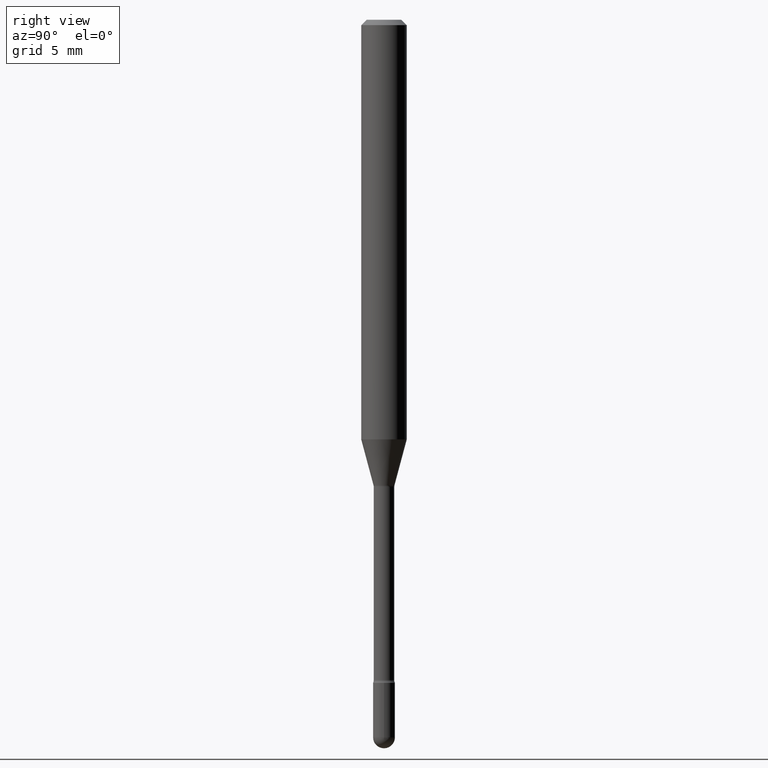
[diagram: clean part render]
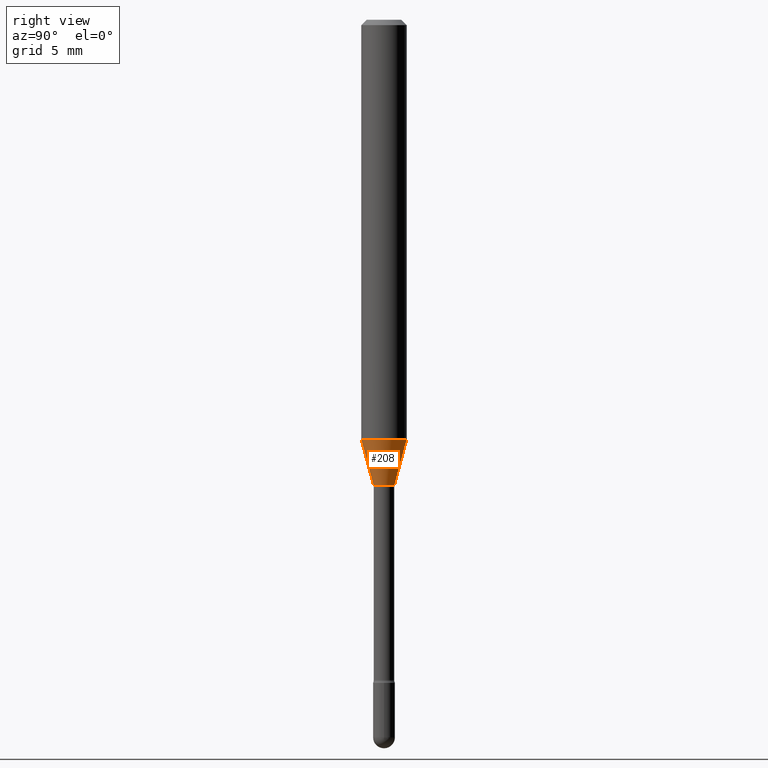
[diagram: same view with one face highlighted and labeled with its STEP entity id]
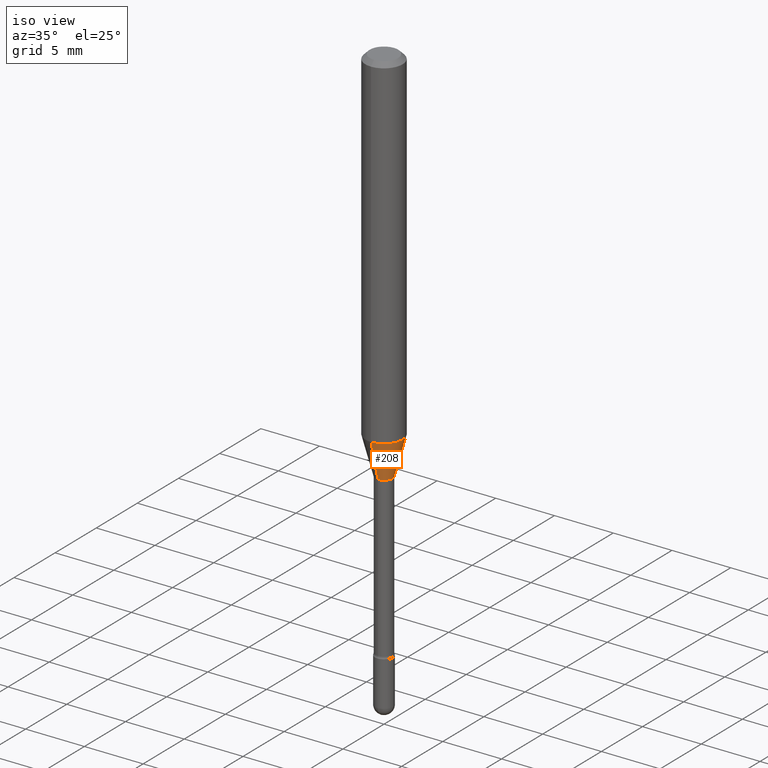
[diagram: same view with one face highlighted and labeled with its STEP entity id]
A machine part, right view. The second image highlights one B-rep face of the part: STEP entity #208.
A second angle (iso view) of the same face is appended — the face is thin or edge-on in the first view.
In plain terms, the highlighted conical surface has half-angle 15 deg.
Its self-contained STEP definition (entity closure, byte-faithful):
#19 = DIRECTION ( 'NONE',  ( -1.807323732225328562E-15, -0.2588190451025179639, 0.9659258262890690894 ) ) ;
#35 = ORIENTED_EDGE ( 'NONE', *, *, #116, .T. ) ;
#42 = AXIS2_PLACEMENT_3D ( 'NONE', #142, #87, #266 ) ;
#53 = EDGE_CURVE ( 'NONE', #333, #104, #298, .T. ) ;
#61 = ORIENTED_EDGE ( 'NONE', *, *, #348, .F. ) ;
#66 = LINE ( 'NONE', #143, #287 ) ;
#80 = ORIENTED_EDGE ( 'NONE', *, *, #53, .T. ) ;
#87 = DIRECTION ( 'NONE',  ( -2.445457254493661418E-29, 3.491497881522819481E-15, 1.000000000000000000 ) ) ;
#104 = VERTEX_POINT ( 'NONE', #129 ) ;
#116 = EDGE_CURVE ( 'NONE', #325, #333, #201, .T. ) ;
#129 = CARTESIAN_POINT ( 'NONE',  ( 4.440892098500904235E-16, 0.06249999999999594075, -1.151990657300388188 ) ) ;
#142 = CARTESIAN_POINT ( 'NONE',  ( 3.125520580409640531E-29, -4.462457262380464341E-15, -1.278092501787273072 ) ) ;
#143 = CARTESIAN_POINT ( 'NONE',  ( -2.004886277601679343E-16, -0.02871111260566843598, -1.278092501787273072 ) ) ;
#180 = CARTESIAN_POINT ( 'NONE',  ( 3.125520580409640531E-29, -4.462457262380464341E-15, -1.278092501787273072 ) ) ;
#185 = CARTESIAN_POINT ( 'NONE',  ( -4.364351673553636648E-16, -0.06250000000000405231, -1.151990657300387522 ) ) ;
#189 = EDGE_LOOP ( 'NONE', ( #35, #80, #279, #61 ) ) ;
#198 = EDGE_CURVE ( 'NONE', #322, #104, #243, .T. ) ;
#201 = CIRCLE ( 'NONE', #326, 0.02871111260566397427 ) ;
#208 = ADVANCED_FACE ( 'NONE', ( #228 ), #233, .T. ) ;
#217 = DIRECTION ( 'NONE',  ( -6.982962677686265922E-15, -1.000000000000000000, 0.000000000000000000 ) ) ;
#228 = FACE_OUTER_BOUND ( 'NONE', #189, .T. ) ;
#233 = CONICAL_SURFACE ( 'NONE', #42, 0.02871111260566397427, 0.2617993877991500740 ) ;
#237 = CARTESIAN_POINT ( 'NONE',  ( -2.004886277601679343E-16, -0.02871111260566843598, -1.278092501787273072 ) ) ;
#243 = CIRCLE ( 'NONE', #553, 0.06250000000000000000 ) ;
#251 = DIRECTION ( 'NONE',  ( 1.839019923739598738E-15, 0.2588190451025247363, 0.9659258262890673130 ) ) ;
#266 = DIRECTION ( 'NONE',  ( -6.982962677686265922E-15, -1.000000000000000000, 0.000000000000000000 ) ) ;
#279 = ORIENTED_EDGE ( 'NONE', *, *, #198, .F. ) ;
#287 = VECTOR ( 'NONE', #19, 39.37007874015748854 ) ;
#298 = LINE ( 'NONE', #525, #341 ) ;
#322 = VERTEX_POINT ( 'NONE', #185 ) ;
#325 = VERTEX_POINT ( 'NONE', #237 ) ;
#326 = AXIS2_PLACEMENT_3D ( 'NONE', #180, #440, #217 ) ;
#333 = VERTEX_POINT ( 'NONE', #540 ) ;
#341 = VECTOR ( 'NONE', #251, 39.37007874015748854 ) ;
#348 = EDGE_CURVE ( 'NONE', #325, #322, #66, .T. ) ;
#355 = DIRECTION ( 'NONE',  ( -6.982962677686265922E-15, -1.000000000000000000, 4.370956789862821150E-15 ) ) ;
#409 = CARTESIAN_POINT ( 'NONE',  ( 2.817143910004154640E-29, -4.022172939498384553E-15, -1.151990657300387744 ) ) ;
#440 = DIRECTION ( 'NONE',  ( -2.445457254493661418E-29, 3.491497881522819481E-15, 1.000000000000000000 ) ) ;
#487 = DIRECTION ( 'NONE',  ( -2.445457254493661418E-29, 3.491497881522819481E-15, 1.000000000000000000 ) ) ;
#525 = CARTESIAN_POINT ( 'NONE',  ( 2.040047249754790466E-16, 0.02871111260565951603, -1.278092501787273072 ) ) ;
#540 = CARTESIAN_POINT ( 'NONE',  ( 3.240469674127849323E-16, 0.02871111260565951603, -1.278092501787273072 ) ) ;
#553 = AXIS2_PLACEMENT_3D ( 'NONE', #409, #487, #355 ) ;